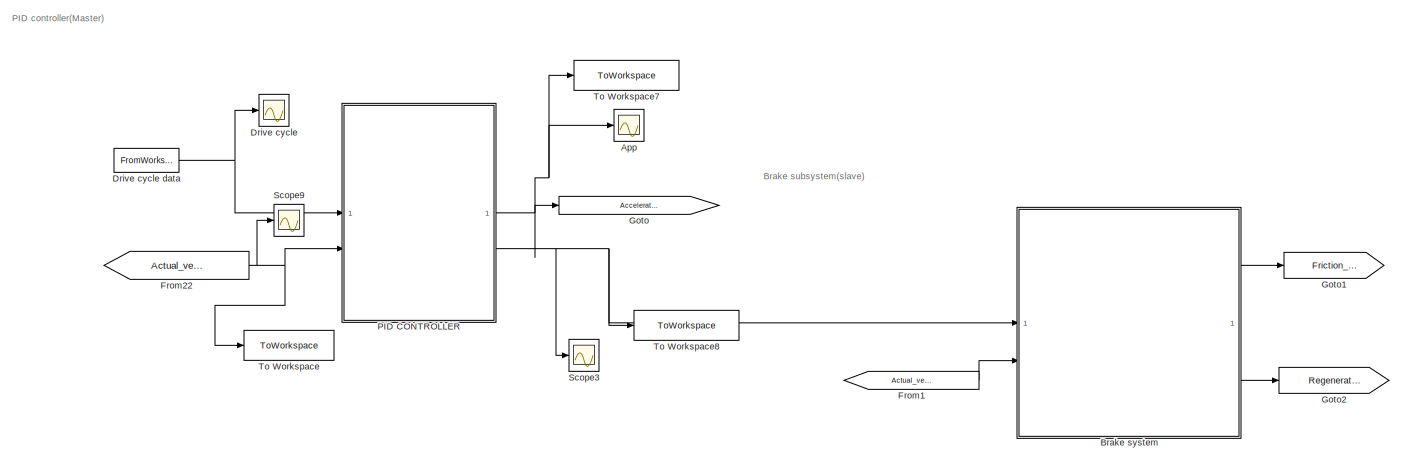
[diagram: root canvas - part 1/5, top center region]
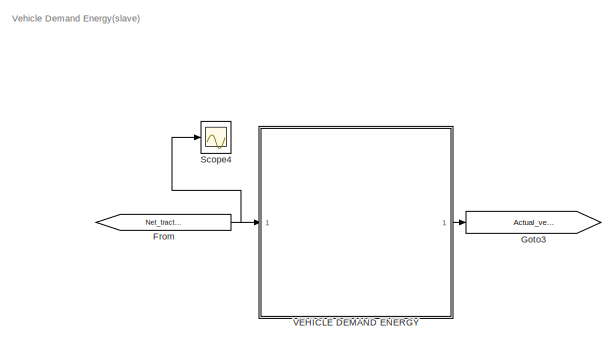
[diagram: root canvas - part 2/5, top left region]
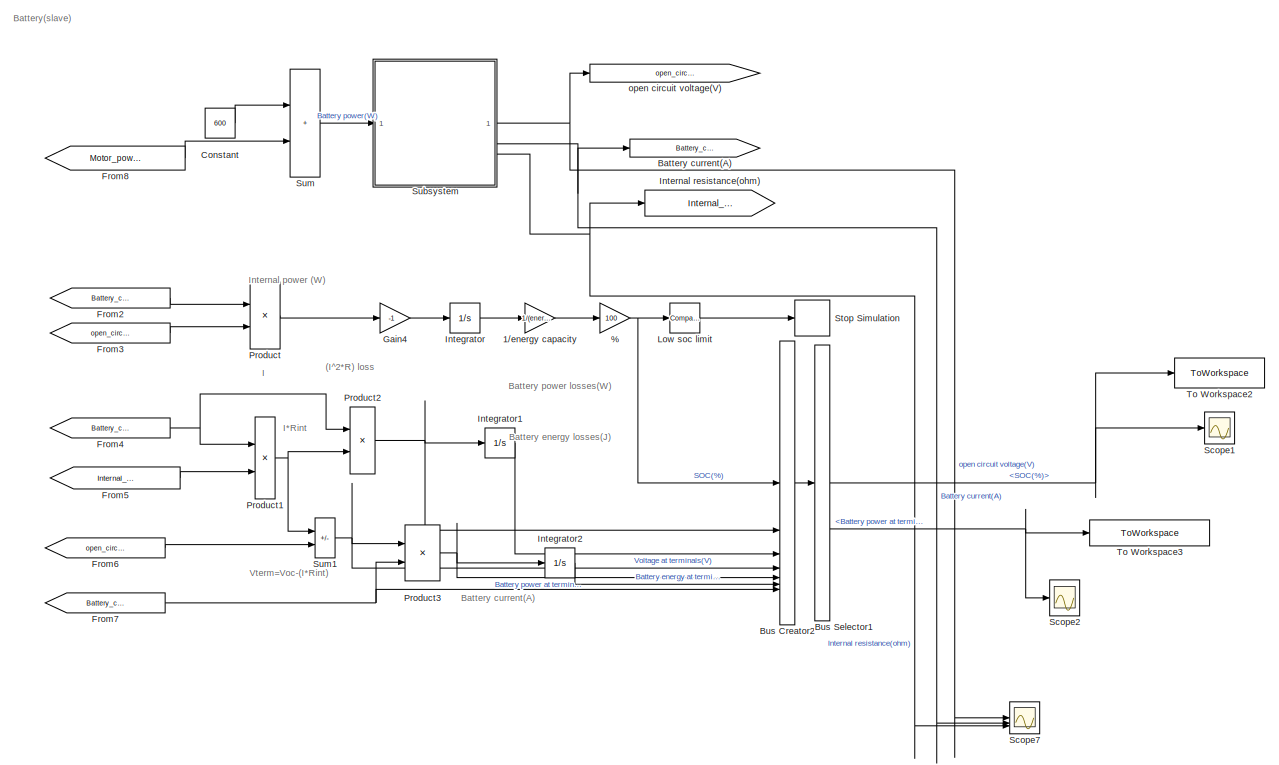
[diagram: root canvas - part 3/5, middle right region]
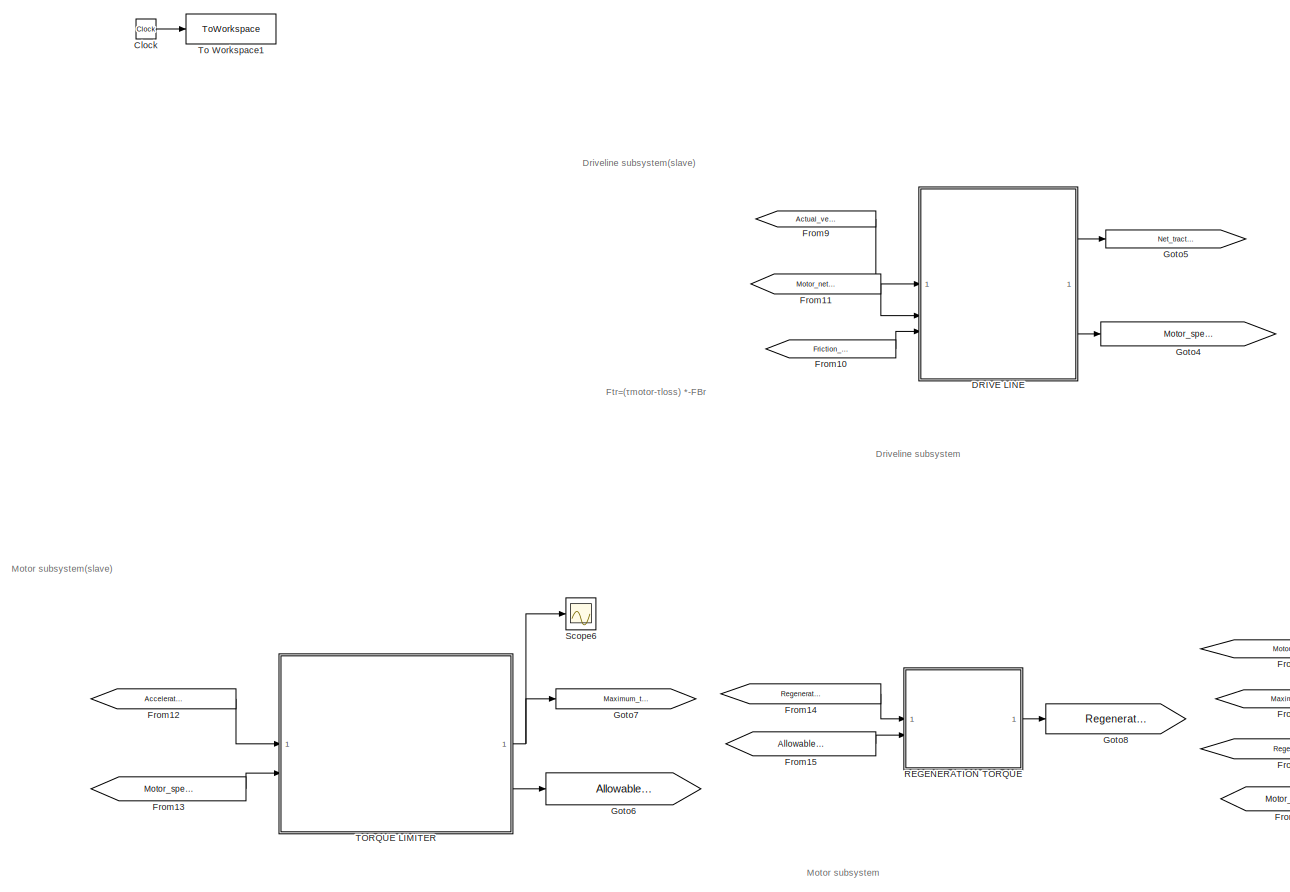
[diagram: root canvas - part 4/5, bottom left region]
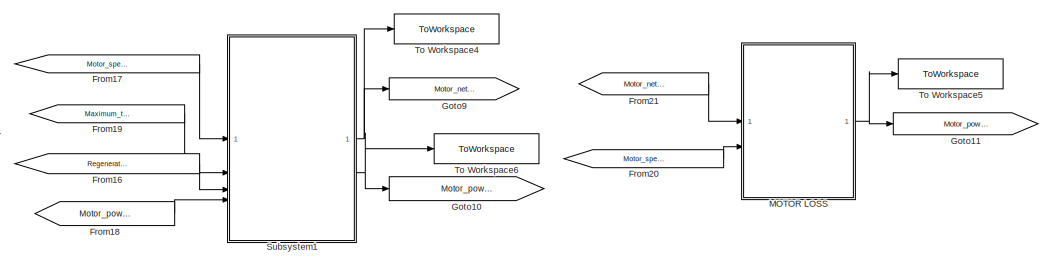
[diagram: root canvas - part 5/5, bottom center region]
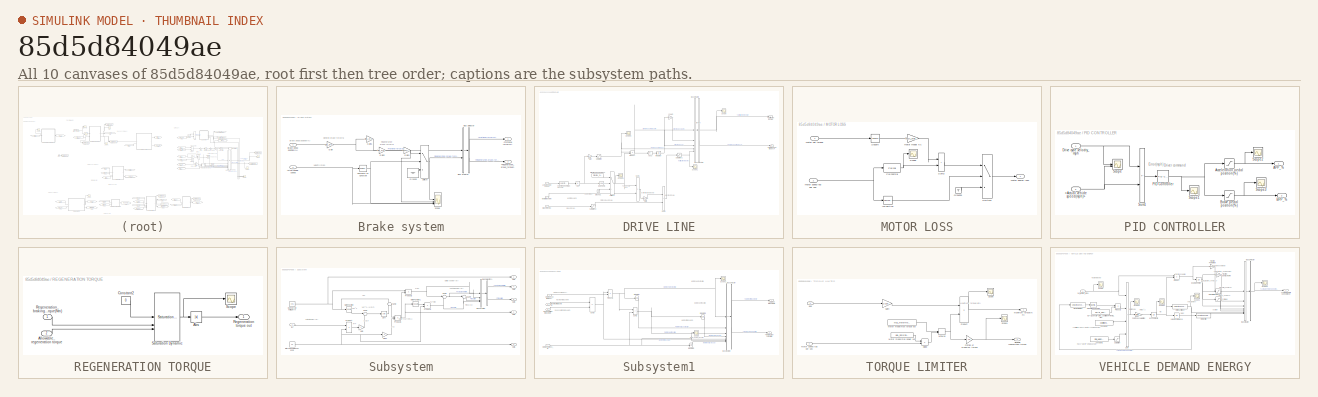
[diagram: thumbnail index - all 10 canvases of the model, root first then tree order]
MODEL slx_85d5d84049ae
KIND model
CONFIG AbsTol = auto
CONFIG EnableMultiTasking = off
CONFIG FixedStep = auto
CONFIG MaxStep = auto
CONFIG MinStep = auto
CONFIG RelTol = 1e-3
CONFIG SampleTimeConstraint = Unconstrained
CONFIG SolverName = ode4
CONFIG StartTime = 0.0
CONFIG StopTime = 601
BLOCK [Gain] %
  Gain = 100
BLOCK [Gain] 1//energy capacity
  Gain = 1/(energy_capacity*3600*1000)
BLOCK [Scope] App
  ActiveDisplayYMaximum = 8.29642
  ActiveDisplayYMinimum = -0.92182
  Floating = off
  GraphicalSettings = {"GraphicalSettings":{"LegacySettings":true,"Style":{"Style":{"AxesColor":"[0 0 0]","ChannelNames":[""],"ColorOrder":"[1 0.909803921568627 0.392156862745098;0.149019607843137 0.549019607843137 0.866666666666667;0.96078431372549 0.466666666666667 0.16078431372549;0.286274509803922 0.858823529411765 0.250980392156863;0.752941176470588 0.36078431372549 0.984313725490196;0.423529411764706 0.9568627450...<+457ch>  <repeated x5 — deduplicated; at blocks: App, Scope4, Scope>
  MultipleDisplayCache = [{"MaxYLimMag":8.29642,"MaxYLimReal":8.29642,"MinYLimMag":0,"MinYLimReal":-0.92182,"PlotAsMagnitudePhase":false,"ShowGrid":true,"ShowLegend":false,"Title":"%<SignalLabel>","YLabel":""}]
  NumInputPorts = 1
  WasSavedAsWebScope = on
BLOCK [Goto] Battery current(A)
  GotoTag = Battery_current_A
BLOCK [SubSystem] Brake system
BLOCK [Outport] Brake system/<Frictional force(N)>
BLOCK [Outport] Brake system/<Regenerative_brake_torque>
  Port = 2
BLOCK [Inport] Brake system/Actual vehicle speed
  Port = 2
BLOCK [Inport] Brake system/Brake pedal position(%)
BLOCK [BusCreator] Brake system/Bus Creator
  DisplayOption = bar
  InheritFromInputs = on
  Inputs = 2
BLOCK [BusSelector] Brake system/Bus Selector
  OutputSignals = Frictional force(N),Regenerative_brake_torque(Nm)
BLOCK [Reference] Brake system/Compare To Constant  REF=simulink/Logic and Bit
Operations/Compare
To Constant
  SourceBlock = simulink/Logic and Bit\nOperations/Compare\nTo Constant
  SourceType = Compare To Constant
BLOCK [Gain] Brake system/Gain
  Gain = MDL_Brakingsystem_maximum_brakeforce/100
BLOCK [Gain] Brake system/Gain1
  Gain = MDL_brakesystem_friction
BLOCK [Gain] Brake system/Gain2
  Gain = MDL_brakesystem_regenerative_friction
BLOCK [Gain] Brake system/Gain3
  Gain = wheel_radius_cal/Gear_Ratio_g
BLOCK [Ground] Brake system/Ground
BLOCK [Scope] Brake system/Scope
  ActiveDisplayYMaximum = 1
  ActiveDisplayYMinimum = -1
  DataLoggingVariableName = ScopeData3
  Floating = off
  GraphicalSettings = {"GraphicalSettings":{"LegacySettings":true,"Style":{"Style":{"AxesColor":"[0 0 0]","ChannelNames":["","","",""],"ColorOrder":"[1 0.909803921568627 0.392156862745098;0.149019607843137 0.549019607843137 0.866666666666667;0.96078431372549 0.466666666666667 0.16078431372549;0.286274509803922 0.858823529411765 0.250980392156863;0.752941176470588 0.36078431372549 0.984313725490196;0.423529411764706 0.9...<+525ch>
  LayoutDimensionsString = [4 1]
  MultipleDisplayCache = [{"MaxYLimMag":1,"MaxYLimReal":1,"MinYLimMag":0,"MinYLimReal":-1,"PlotAsMagnitudePhase":false,"ShowGrid":true,"ShowLegend":false,"Title":"%<SignalLabel>","YLabel":""},{"MaxYLimMag":4.84188,"MaxYLimReal":1,"MinYLimMag":0,"MinYLimReal":-1,"PlotAsMagnitudePhase":false,"ShowGrid":true,"ShowLegend":false,"Title":"%<SignalLabel>","YLabel":""},{"MaxYLimMag":4.84188,"MaxYLimReal":1,"MinYLimMag":0,"MinYLim...<+296ch>
  NumInputPorts = 4
  WasSavedAsWebScope = on
  WindowPosition = [1 41 1366 651]
BLOCK [Switch] Brake system/Switch
  Criteria = u2 > Threshold
  InputSameDT = off
  SaturateOnIntegerOverflow = off
BLOCK [BusCreator] Bus Creator2
  DisplayOption = bar
  InheritFromInputs = on
  Inputs = 7
BLOCK [BusSelector] Bus Selector1
  OutputSignals = SOC(%),Battery power at terminals(W)
BLOCK [Clock] Clock
BLOCK [Constant] Constant
  Value = 600
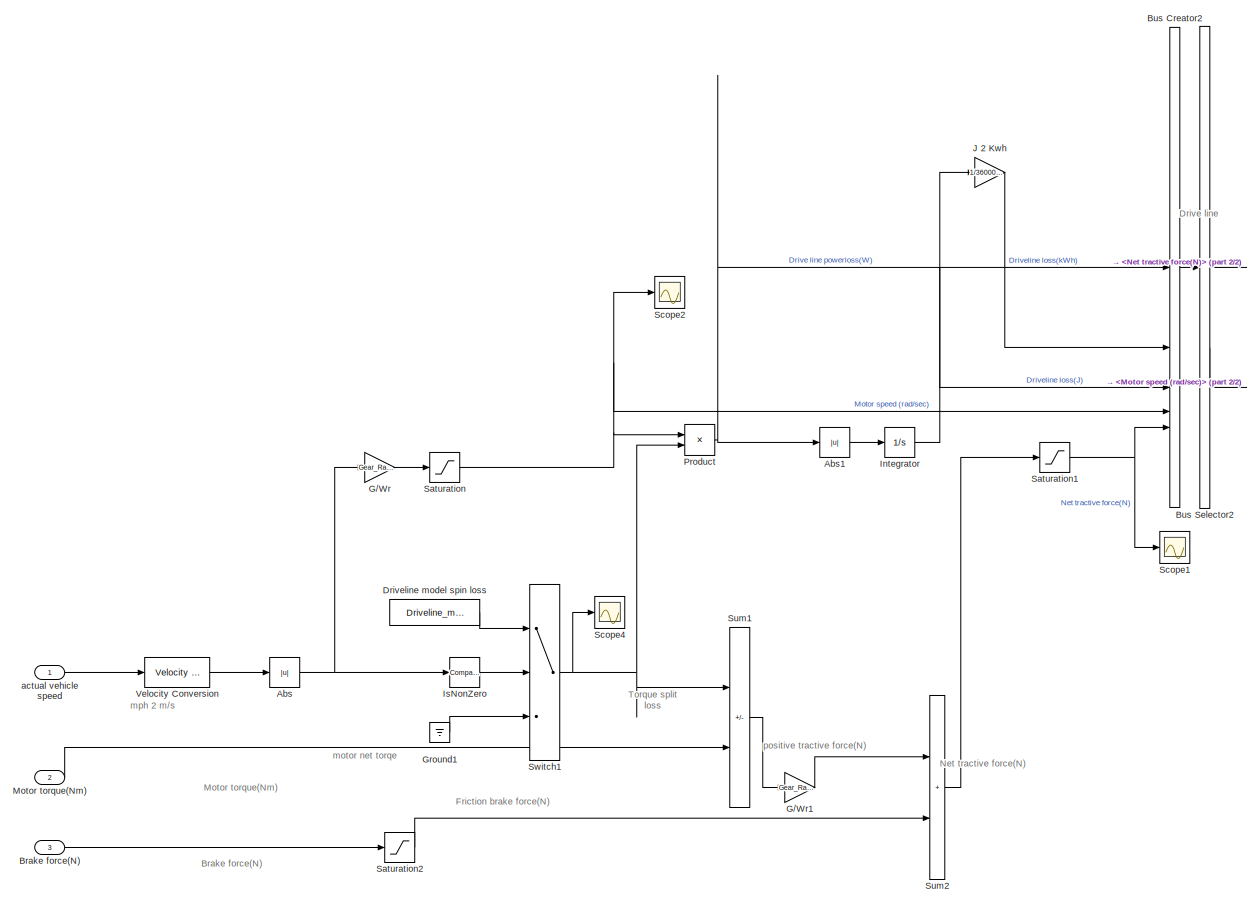
[diagram: DRIVE LINE - part 1/2, center side, full height]
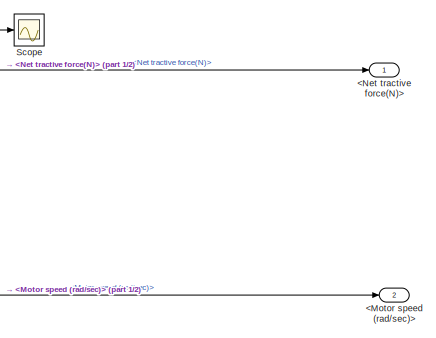
[diagram: DRIVE LINE - part 2/2, top right region]
BLOCK [SubSystem] DRIVE LINE
BLOCK [Outport] DRIVE LINE/<Motor speed (rad//sec)>
  Port = 2
BLOCK [Outport] DRIVE LINE/<Net tractive force(N)>
BLOCK [Abs] DRIVE LINE/Abs
  SaturateOnIntegerOverflow = off
BLOCK [Abs] DRIVE LINE/Abs1
  SaturateOnIntegerOverflow = off
BLOCK [Inport] DRIVE LINE/Brake force(N)
  Port = 3
BLOCK [BusCreator] DRIVE LINE/Bus Creator2
  DisplayOption = bar
  InheritFromInputs = on
  Inputs = 5
BLOCK [BusSelector] DRIVE LINE/Bus Selector2
  OutputSignals = Net tractive force(N),Motor speed (rad/sec)
BLOCK [Constant] DRIVE LINE/Driveline model spin loss
  OutDataTypeStr = double
  Value = Driveline_model_spinloss
BLOCK [Gain] DRIVE LINE/G//Wr
  Gain = Gear_Ratio_g/wheel_radius_cal
BLOCK [Gain] DRIVE LINE/G//Wr1
  Gain = Gear_Ratio_g/wheel_radius_cal
BLOCK [Ground] DRIVE LINE/Ground1
BLOCK [Integrator] DRIVE LINE/Integrator
BLOCK [Reference] DRIVE LINE/IsNonZero  REF=simulink/Logic and Bit
Operations/Compare
To Zero
  SourceBlock = simulink/Logic and Bit\nOperations/Compare\nTo Zero
  SourceType = Compare To Zero
BLOCK [Gain] DRIVE LINE/J 2 Kwh
  Gain = 1/3600000
BLOCK [Inport] DRIVE LINE/Motor torque(Nm)
  Port = 2
BLOCK [Product] DRIVE LINE/Product
BLOCK [Saturate] DRIVE LINE/Saturation
  LowerLimit = .00001
  UpperLimit = inf
BLOCK [Saturate] DRIVE LINE/Saturation1
  LowerLimit = -10000
  OutDataTypeStr = double
  UpperLimit = 5000
BLOCK [Saturate] DRIVE LINE/Saturation2
  LowerLimit = -10000
  UpperLimit = 0
BLOCK [Scope] DRIVE LINE/Scope
  ActiveDisplayYMaximum = 1
  ActiveDisplayYMinimum = -1
  DataLoggingVariableName = ScopeData1
  Floating = off
  GraphicalSettings = {"Style":{"BackgroundColor":[0.12941176470588237,0.12941176470588237,0.12941176470588237],"AxesColor":[0.07058823529411765,0.07058823529411765,0.07058823529411765],"LabelsColor":[0.8509803921568627,0.8509803921568627,0.8509803921568627],"PreserveColors":false,"Visible":[true],"LineStyle":["-"],"LineWidth":[1.5],"BarWidth":[0.9],"LineColor":["auto"],"LineFaceAlpha":[1],"LineEdgeAlpha":[1],"Marker":...<+1923ch>
  MultipleDisplayCache = [{"MaxYLimMag":1,"MaxYLimReal":1,"MinYLimMag":0,"MinYLimReal":-1,"PlotAsMagnitudePhase":false,"ShowGrid":true,"ShowLegend":false,"Title":"%<SignalLabel>","YLabel":""}]
  NumInputPorts = 1
  ScopeFrameLocation = window
  WasSavedAsWebScope = on
  WindowPosition = [1.000000,41.000000,1366.000000,651.000000,]
BLOCK [Scope] DRIVE LINE/Scope1
  ActiveDisplayYMaximum = 10023.80324
  ActiveDisplayYMinimum = -10214.22916
  DataLoggingVariableName = ScopeData3
  Floating = off
  GraphicalSettings = {"Style":{"BackgroundColor":[0.12941176470588237,0.12941176470588237,0.12941176470588237],"AxesColor":[0.07058823529411765,0.07058823529411765,0.07058823529411765],"LabelsColor":[0.8509803921568627,0.8509803921568627,0.8509803921568627],"PreserveColors":false,"Visible":[true],"LineStyle":["-"],"LineWidth":[1.5],"BarWidth":[0.9],"LineColor":["auto"],"LineFaceAlpha":[1],"LineEdgeAlpha":[1],"Marker":...<+1966ch>
  MultipleDisplayCache = [{"MaxYLimMag":10214.22916,"MaxYLimReal":10023.80324,"MinYLimMag":0,"MinYLimReal":-10214.22916,"PlotAsMagnitudePhase":false,"ShowGrid":true,"ShowLegend":false,"Title":"%<SignalLabel>","YLabel":""}]
  NumInputPorts = 1
  ScopeFrameLocation = window
  WasSavedAsWebScope = on
  WindowPosition = [1.000000,41.000000,1366.000000,651.000000,]
BLOCK [Scope] DRIVE LINE/Scope2
  ActiveDisplayYMaximum = 69.82309
  ActiveDisplayYMinimum = -7.75811
  DataLoggingVariableName = ScopeData4
  Floating = off
  GraphicalSettings = {"GraphicalSettings":{"LegacySettings":true,"Style":{"Style":{"AxesColor":"[0 0 0]","ChannelNames":[""],"ColorOrder":"[1 0.909803921568627 0.392156862745098;0.149019607843137 0.549019607843137 0.866666666666667;0.96078431372549 0.466666666666667 0.16078431372549;0.286274509803922 0.858823529411765 0.250980392156863;0.752941176470588 0.36078431372549 0.984313725490196;0.423529411764706 0.9568627450...<+432ch>  <repeated x5 — deduplicated; at blocks: Scope2, Scope3, Scope4>
  MultipleDisplayCache = [{"MaxYLimMag":69.82309,"MaxYLimReal":69.82309,"MinYLimMag":0,"MinYLimReal":-7.75811,"PlotAsMagnitudePhase":false,"ShowGrid":true,"ShowLegend":false,"Title":"%<SignalLabel>","YLabel":""}]
  NumInputPorts = 1
  WasSavedAsWebScope = on
BLOCK [Scope] DRIVE LINE/Scope4
  ActiveDisplayYMaximum = 6.75
  ActiveDisplayYMinimum = -0.75
  DataLoggingVariableName = ScopeData11
  Floating = off
  MultipleDisplayCache = [{"MaxYLimMag":6.75,"MaxYLimReal":6.75,"MinYLimMag":0,"MinYLimReal":-0.75,"PlotAsMagnitudePhase":false,"ShowGrid":true,"ShowLegend":false,"Title":"%<SignalLabel>","YLabel":""}]
  NumInputPorts = 1
  WasSavedAsWebScope = on
  WindowPosition = [1 41 1366 651]
BLOCK [Sum] DRIVE LINE/Sum1
  IconShape = rectangular
  Inputs = |-+
BLOCK [Sum] DRIVE LINE/Sum2
  IconShape = rectangular
  Inputs = |++
BLOCK [Switch] DRIVE LINE/Switch1
  Criteria = u2 > Threshold
  InputSameDT = off
  OutDataTypeStr = double
  SaturateOnIntegerOverflow = off
BLOCK [Reference] DRIVE LINE/Velocity Conversion  REF=aerolibconvert2/Velocity Conversion
  SourceBlock = aerolibconvert2/Velocity Conversion
  SourceType = Velocity Conversion
BLOCK [Inport] DRIVE LINE/actual vehicle speed
BLOCK [Scope] Drive cycle
  ActiveDisplayYMaximum = 90.3375
  ActiveDisplayYMinimum = -10.0375
  DataLoggingVariableName = ScopeData12
  Floating = off
  GraphicalSettings = {"GraphicalSettings":{"LegacySettings":true,"Style":{"Style":{"AxesColor":"[0 0 0]","ChannelNames":[""],"ColorOrder":"[1 0.909803921568627 0.392156862745098;0.149019607843137 0.549019607843137 0.866666666666667;0.96078431372549 0.466666666666667 0.16078431372549;0.286274509803922 0.858823529411765 0.250980392156863;0.752941176470588 0.36078431372549 0.984313725490196;0.423529411764706 0.9568627450...<+14248ch>
  MultipleDisplayCache = [{"MaxYLimMag":90.3375,"MaxYLimReal":90.3375,"MinYLimMag":0,"MinYLimReal":-10.0375,"PlotAsMagnitudePhase":false,"ShowGrid":true,"ShowLegend":false,"Title":"%<SignalLabel>","YLabel":""}]
  NumInputPorts = 1
  WasSavedAsWebScope = on
  WindowPosition = [1 41 1366 651]
BLOCK [FromWorkspace] Drive cycle data
  SampleTime = 0.1
  VariableName = velocity
BLOCK [From] From
  GotoTag = Net_tractive_force_N
  TagVisibility = global
BLOCK [From] From1
  GotoTag = Actual_vehicle_speed
  TagVisibility = global
BLOCK [From] From10
  GotoTag = Friction_force_N
  TagVisibility = global
BLOCK [From] From11
  GotoTag = Motor_net_torque
  TagVisibility = global
BLOCK [From] From12
  GotoTag = Acceleration_pedal_position
  TagVisibility = global
BLOCK [From] From13
  GotoTag = Motor_speed_rad_per_second
  TagVisibility = global
BLOCK [From] From14
  GotoTag = Regeneration_torque
  TagVisibility = global
BLOCK [From] From15
  GotoTag = Allowable_regeneration_torque
  TagVisibility = global
BLOCK [From] From16
  GotoTag = Regeneration_torque_out
  TagVisibility = global
BLOCK [From] From17
  GotoTag = Motor_speed_rad_per_second
  TagVisibility = global
BLOCK [From] From18
  GotoTag = Motor_power_loss
  TagVisibility = global
BLOCK [From] From19
  GotoTag = Maximum_torque_Nm
  TagVisibility = global
BLOCK [From] From2
  GotoTag = Battery_current_A
BLOCK [From] From20
  GotoTag = Motor_speed_rad_per_second
  TagVisibility = global
BLOCK [From] From21
  GotoTag = Motor_net_torque
  TagVisibility = global
BLOCK [From] From22
  GotoTag = Actual_vehicle_speed
  TagVisibility = global
BLOCK [From] From3
  GotoTag = open_circuit_voltage_V
BLOCK [From] From4
  GotoTag = Battery_current_A
BLOCK [From] From5
  GotoTag = Internal_resistance_ohm
BLOCK [From] From6
  GotoTag = open_circuit_voltage_V
BLOCK [From] From7
  GotoTag = Battery_current_A
BLOCK [From] From8
  GotoTag = Motor_power_output_W
  TagVisibility = global
BLOCK [From] From9
  GotoTag = Actual_vehicle_speed
  TagVisibility = global
BLOCK [Gain] Gain4
  Gain = -1
BLOCK [Goto] Goto
  GotoTag = Acceleration_pedal_position
  TagVisibility = global
BLOCK [Goto] Goto1
  GotoTag = Friction_force_N
  TagVisibility = global
BLOCK [Goto] Goto10
  GotoTag = Motor_power_output_W
  TagVisibility = global
BLOCK [Goto] Goto11
  GotoTag = Motor_power_loss
  TagVisibility = global
BLOCK [Goto] Goto2
  GotoTag = Regeneration_torque
  TagVisibility = global
BLOCK [Goto] Goto3
  GotoTag = Actual_vehicle_speed
  TagVisibility = global
BLOCK [Goto] Goto4
  GotoTag = Motor_speed_rad_per_second
  TagVisibility = global
BLOCK [Goto] Goto5
  GotoTag = Net_tractive_force_N
  TagVisibility = global
BLOCK [Goto] Goto6
  GotoTag = Allowable_regeneration_torque
  TagVisibility = global
BLOCK [Goto] Goto7
  GotoTag = Maximum_torque_Nm
  TagVisibility = global
BLOCK [Goto] Goto8
  GotoTag = Regeneration_torque_out
  TagVisibility = global
BLOCK [Goto] Goto9
  GotoTag = Motor_net_torque
  TagVisibility = global
BLOCK [Integrator] Integrator
  InitialCondition = energy_capacity*3600*1000*initial_soc
BLOCK [Integrator] Integrator1
BLOCK [Integrator] Integrator2
BLOCK [Goto] Internal resistance(ohm)
  GotoTag = Internal_resistance_ohm
BLOCK [Reference] Low soc limit  REF=simulink/Logic and Bit
Operations/Compare
To Constant
  SourceBlock = simulink/Logic and Bit\nOperations/Compare\nTo Constant
  SourceType = Compare To Constant
BLOCK [SubSystem] MOTOR LOSS
BLOCK [Ground] MOTOR LOSS/Ground1
BLOCK [Reference] MOTOR LOSS/IsPositive  REF=simulink/Logic and Bit
Operations/Compare
To Zero
  SourceBlock = simulink/Logic and Bit\nOperations/Compare\nTo Zero
  SourceType = Compare To Zero
BLOCK [Polyval] MOTOR LOSS/Polynomial
  Coefs = [MotorModel_kw,0,MotorModel_ki,MotorModel_C]
BLOCK [Scope] MOTOR LOSS/Scope
  ActiveDisplayYMaximum = 1027.81559
  ActiveDisplayYMinimum = 583.90938
  DataLoggingVariableName = ScopeData5
  Floating = off
  MultipleDisplayCache = [{"MaxYLimMag":1027.81559,"MaxYLimReal":1027.81559,"MinYLimMag":583.90938,"MinYLimReal":583.90938,"PlotAsMagnitudePhase":false,"ShowGrid":true,"ShowLegend":false,"Title":"%<SignalLabel>","YLabel":""}]
  NumInputPorts = 1
  WasSavedAsWebScope = on
BLOCK [Math] MOTOR LOSS/Square
  Operator = square
BLOCK [Sum] MOTOR LOSS/Sum3
  IconShape = rectangular
  Inputs = |++
BLOCK [Switch] MOTOR LOSS/Switch1
  Criteria = u2 > Threshold
  InputSameDT = off
  OutDataTypeStr = double
  SaturateOnIntegerOverflow = off
BLOCK [Gain] MOTOR LOSS/motor model Kc
  Gain = MDL_motormodel_Kc
BLOCK [Inport] MOTOR LOSS/motor net torque
BLOCK [Outport] MOTOR LOSS/motor power loss
BLOCK [Inport] MOTOR LOSS/motor speed rad per sec
  Port = 2
BLOCK [SubSystem] PID CONTROLLER
BLOCK [Inport] PID CONTROLLER/<Actual vehicle speed(mph)>
  Port = 2
BLOCK [Outport] PID CONTROLLER/APP_%
BLOCK [Saturate] PID CONTROLLER/Acceleration pedal position(%)
  LinearizeAsGain = off
  LowerLimit = 0
  OutDataTypeStr = double
  UpperLimit = 100
  ZeroCross = off
BLOCK [Outport] PID CONTROLLER/BPP_%
  Port = 2
BLOCK [Saturate] PID CONTROLLER/Brake pedal position(%)
  LinearizeAsGain = off
  LowerLimit = -100
  OutDataTypeStr = double
  UpperLimit = 0
  ZeroCross = off
BLOCK [Inport] PID CONTROLLER/Drive cycle velocity_mph
BLOCK [Reference] PID CONTROLLER/PID Controller  REF=slpidlib/PID Controller
  SourceBlock = slpidlib/PID Controller
  SourceType = PID 1dof
BLOCK [Scope] PID CONTROLLER/Scope
  ActiveDisplayYMaximum = 1
  ActiveDisplayYMinimum = -1
  DataLoggingVariableName = ScopeData1
  Floating = off
  GraphicalSettings = {"Style":{"BackgroundColor":[0.12941176470588237,0.12941176470588237,0.12941176470588237],"AxesColor":[0.07058823529411765,0.07058823529411765,0.07058823529411765],"LabelsColor":[0.8509803921568627,0.8509803921568627,0.8509803921568627],"PreserveColors":false,"Visible":[true,true],"LineStyle":["-","-"],"LineWidth":[1.5,1.5],"BarWidth":[0.9,0.9],"LineColor":["auto","auto"],"LineFaceAlpha":[1,1],"Li...<+2185ch>
  MultipleDisplayCache = [{"MaxYLimMag":1,"MaxYLimReal":1,"MinYLimMag":0,"MinYLimReal":-1,"PlotAsMagnitudePhase":false,"ShowGrid":true,"ShowLegend":true,"Title":"%<SignalLabel>","YLabel":""}]
  NumInputPorts = 2
  ScopeFrameLocation = window
  ShowLegend = on
  WasSavedAsWebScope = on
  WindowPosition = [1.000000,41.000000,1366.000000,705.000000,]
BLOCK [Scope] PID CONTROLLER/Scope1
  ActiveDisplayYMaximum = 1
  ActiveDisplayYMinimum = -1
  DataLoggingVariableName = ScopeData1
  Floating = off
  GraphicalSettings = {"Style":{"BackgroundColor":[0.12941176470588237,0.12941176470588237,0.12941176470588237],"AxesColor":[0.07058823529411765,0.07058823529411765,0.07058823529411765],"LabelsColor":[0.8509803921568627,0.8509803921568627,0.8509803921568627],"PreserveColors":false,"Visible":[true],"LineStyle":["-"],"LineWidth":[1.5],"BarWidth":[0.9],"LineColor":["auto"],"LineFaceAlpha":[1],"LineEdgeAlpha":[1],"Marker":...<+1946ch>
  MultipleDisplayCache = [{"MaxYLimMag":1,"MaxYLimReal":1,"MinYLimMag":0,"MinYLimReal":-1,"PlotAsMagnitudePhase":false,"ShowGrid":true,"ShowLegend":false,"Title":"%<SignalLabel>","YLabel":""}]
  NumInputPorts = 1
  ScopeFrameLocation = window
  WasSavedAsWebScope = on
  WindowPosition = [1.000000,41.000000,1366.000000,651.000000,]
BLOCK [Scope] PID CONTROLLER/Scope2
  ActiveDisplayYMaximum = 1
  ActiveDisplayYMinimum = -1
  DataLoggingVariableName = ScopeData10
  Floating = off
  GraphicalSettings = {"Style":{"BackgroundColor":[0.12941176470588237,0.12941176470588237,0.12941176470588237],"AxesColor":[0.07058823529411765,0.07058823529411765,0.07058823529411765],"LabelsColor":[0.8509803921568627,0.8509803921568627,0.8509803921568627],"PreserveColors":false,"Visible":[true],"LineStyle":["-"],"LineWidth":[1.5],"BarWidth":[0.9],"LineColor":["auto"],"LineFaceAlpha":[1],"LineEdgeAlpha":[1],"Marker":...<+1936ch>
  MultipleDisplayCache = [{"MaxYLimMag":1,"MaxYLimReal":1,"MinYLimMag":0,"MinYLimReal":-1,"PlotAsMagnitudePhase":false,"ShowGrid":true,"ShowLegend":false,"Title":"%<SignalLabel>","YLabel":""}]
  NumInputPorts = 1
  ScopeFrameLocation = window
  WasSavedAsWebScope = on
  WindowPosition = [1.000000,41.000000,1366.000000,705.000000,]
BLOCK [Scope] PID CONTROLLER/Scope3
  ActiveDisplayYMaximum = 1
  ActiveDisplayYMinimum = -1
  DataLoggingVariableName = ScopeData1
  Floating = off
  GraphicalSettings = {"Style":{"BackgroundColor":[0.12941176470588237,0.12941176470588237,0.12941176470588237],"AxesColor":[0.07058823529411765,0.07058823529411765,0.07058823529411765],"LabelsColor":[0.8509803921568627,0.8509803921568627,0.8509803921568627],"PreserveColors":false,"Visible":[true],"LineStyle":["-"],"LineWidth":[1.5],"BarWidth":[0.9],"LineColor":["auto"],"LineFaceAlpha":[1],"LineEdgeAlpha":[1],"Marker":...<+1947ch>
  MultipleDisplayCache = [{"MaxYLimMag":1,"MaxYLimReal":1,"MinYLimMag":0,"MinYLimReal":-1,"PlotAsMagnitudePhase":false,"ShowGrid":true,"ShowLegend":false,"Title":"%<SignalLabel>","YLabel":""}]
  NumInputPorts = 1
  ScopeFrameLocation = window
  WasSavedAsWebScope = on
  WindowPosition = [1.000000,41.000000,1366.000000,705.000000,]
BLOCK [Sum] PID CONTROLLER/Sum1
  IconShape = rectangular
  Inputs = +-
BLOCK [Product] Product
BLOCK [Product] Product1
BLOCK [Product] Product2
BLOCK [Product] Product3
BLOCK [SubSystem] REGENERATION TORQUE
BLOCK [Abs] REGENERATION TORQUE/Abs
  SaturateOnIntegerOverflow = off
BLOCK [Inport] REGENERATION TORQUE/Allowable_regeneration torque
  Port = 2
BLOCK [Constant] REGENERATION TORQUE/Constant2
  Value = 0
BLOCK [Outport] REGENERATION TORQUE/Regeneration torque out
BLOCK [Inport] REGENERATION TORQUE/Regeneration_braking_torque(Nm)
BLOCK [Reference] REGENERATION TORQUE/Saturation Dynamic  REF=simulink/Discontinuities/Saturation
Dynamic
  SourceBlock = simulink/Discontinuities/Saturation\nDynamic
  SourceType = Saturation Dynamic
BLOCK [Scope] REGENERATION TORQUE/Scope
  ActiveDisplayYMaximum = 21.3125
  ActiveDisplayYMinimum = -191.8125
  DataLoggingVariableName = ScopeData2
  Floating = off
  GraphicalSettings = {"GraphicalSettings":{"LegacySettings":true,"Style":{"Style":{"AxesColor":"[0 0 0]","ChannelNames":[""],"ColorOrder":"[1 0.909803921568627 0.392156862745098;0.149019607843137 0.549019607843137 0.866666666666667;0.96078431372549 0.466666666666667 0.16078431372549;0.286274509803922 0.858823529411765 0.250980392156863;0.752941176470588 0.36078431372549 0.984313725490196;0.423529411764706 0.9568627450...<+471ch>
  MultipleDisplayCache = [{"MaxYLimMag":191.8125,"MaxYLimReal":21.3125,"MinYLimMag":0,"MinYLimReal":-191.8125,"PlotAsMagnitudePhase":false,"ShowGrid":true,"ShowLegend":false,"Title":"%<SignalLabel>","YLabel":""}]
  NumInputPorts = 1
  WasSavedAsWebScope = on
  WindowPosition = [1 41 1366 651]
BLOCK [Scope] Scope1
  ActiveDisplayYMaximum = 1
  ActiveDisplayYMinimum = -1
  DataLogging = on
  DataLoggingVariableName = ScopeData13
  Floating = off
  GraphicalSettings = {"Style":{"BackgroundColor":[0.12941176470588237,0.12941176470588237,0.12941176470588237],"AxesColor":[0.07058823529411765,0.07058823529411765,0.07058823529411765],"LabelsColor":[0.8509803921568627,0.8509803921568627,0.8509803921568627],"PreserveColors":false,"Visible":[true],"LineStyle":["-"],"LineWidth":[1.5],"BarWidth":[0.9],"LineColor":["auto"],"LineFaceAlpha":[1],"LineEdgeAlpha":[1],"Marker":...<+1946ch>
  MultipleDisplayCache = [{"MaxYLimMag":1,"MaxYLimReal":1,"MinYLimMag":0,"MinYLimReal":-1,"PlotAsMagnitudePhase":false,"ShowGrid":true,"ShowLegend":false,"Title":"%<SignalLabel>","YLabel":""}]
  NumInputPorts = 1
  ScopeFrameLocation = window
  WasSavedAsWebScope = on
  WindowPosition = [1.000000,41.000000,1366.000000,651.000000,]
BLOCK [Scope] Scope2
  ActiveDisplayYMaximum = 119350.00000000003
  ActiveDisplayYMinimum = -68149.999999999942
  DataLogging = on
  DataLoggingVariableName = ScopeData14
  Floating = off
  GraphicalSettings = {"Style":{"BackgroundColor":[0.12941176470588237,0.12941176470588237,0.12941176470588237],"AxesColor":[0.07058823529411765,0.07058823529411765,0.07058823529411765],"LabelsColor":[0.8509803921568627,0.8509803921568627,0.8509803921568627],"PreserveColors":false,"Visible":[true],"LineStyle":["-"],"LineWidth":[1.5],"BarWidth":[0.9],"LineColor":["auto"],"LineFaceAlpha":[1],"LineEdgeAlpha":[1],"Marker":...<+2045ch>
  MultipleDisplayCache = [{"MaxYLimMag":119350.00000000003,"MaxYLimReal":119350.00000000003,"MinYLimMag":0,"MinYLimReal":-68149.999999999942,"PlotAsMagnitudePhase":false,"ShowGrid":true,"ShowLegend":false,"Title":"%<SignalLabel>","YLabel":""}]
  NumInputPorts = 1
  ScopeFrameLocation = window
  WasSavedAsWebScope = on
  WindowPosition = [1.000000,41.000000,1366.000000,651.000000,]
BLOCK [Scope] Scope3
  ActiveDisplayYMaximum = 1
  ActiveDisplayYMinimum = -1
  DataLoggingVariableName = ScopeData6
  Floating = off
  MultipleDisplayCache = [{"MaxYLimMag":1,"MaxYLimReal":1,"MinYLimMag":0,"MinYLimReal":-1,"PlotAsMagnitudePhase":false,"ShowGrid":true,"ShowLegend":false,"Title":"%<SignalLabel>","YLabel":""}]
  NumInputPorts = 1
  WasSavedAsWebScope = on
BLOCK [Scope] Scope4
  ActiveDisplayYMaximum = 6875
  ActiveDisplayYMinimum = -11875
  DataLoggingVariableName = ScopeData15
  Floating = off
  MultipleDisplayCache = [{"MaxYLimMag":11875,"MaxYLimReal":6875,"MinYLimMag":0,"MinYLimReal":-11875,"PlotAsMagnitudePhase":false,"ShowGrid":true,"ShowLegend":false,"Title":"%<SignalLabel>","YLabel":""}]
  NumInputPorts = 1
  WasSavedAsWebScope = on
BLOCK [Scope] Scope6
  ActiveDisplayYMaximum = 1
  ActiveDisplayYMinimum = -1
  DataLoggingVariableName = ScopeData16
  Floating = off
  GraphicalSettings = {"Style":{"BackgroundColor":[0.12941176470588237,0.12941176470588237,0.12941176470588237],"AxesColor":[0.07058823529411765,0.07058823529411765,0.07058823529411765],"LabelsColor":[0.8509803921568627,0.8509803921568627,0.8509803921568627],"PreserveColors":false,"Visible":[true],"LineStyle":["-"],"LineWidth":[1.5],"BarWidth":[0.9],"LineColor":["auto"],"LineFaceAlpha":[1],"LineEdgeAlpha":[1],"Marker":...<+1966ch>
  MultipleDisplayCache = [{"MaxYLimMag":1,"MaxYLimReal":1,"MinYLimMag":0,"MinYLimReal":-1,"PlotAsMagnitudePhase":false,"ShowGrid":true,"ShowLegend":false,"Title":"%<SignalLabel>","YLabel":""}]
  NumInputPorts = 1
  ScopeFrameLocation = window
  WasSavedAsWebScope = on
  WindowPosition = [1.000000,41.000000,1366.000000,705.000000,]
BLOCK [Scope] Scope7
  ActiveDisplayYMaximum = 1
  ActiveDisplayYMinimum = -1
  DataLoggingVariableName = ScopeData9
  Floating = off
  GraphicalSettings = {"Style":{"BackgroundColor":[0.12941176470588237,0.12941176470588237,0.12941176470588237],"AxesColor":[0.07058823529411765,0.07058823529411765,0.07058823529411765],"LabelsColor":[0.8509803921568627,0.8509803921568627,0.8509803921568627],"PreserveColors":false,"Visible":[true,true,true],"LineStyle":["-","-","-"],"LineWidth":[1.5,1.5,1.5],"BarWidth":[0.9,0.9,0.9],"LineColor":["auto","auto","auto"],"...<+2738ch>
  LayoutDimensionsString = [3 1]
  MultipleDisplayCache = [{"MaxYLimMag":1,"MaxYLimReal":1,"MinYLimMag":0,"MinYLimReal":-1,"PlotAsMagnitudePhase":false,"ShowGrid":true,"ShowLegend":false,"Title":"%<SignalLabel>","YLabel":""},{"MaxYLimMag":1,"MaxYLimReal":1,"MinYLimMag":0,"MinYLimReal":-1,"PlotAsMagnitudePhase":false,"ShowGrid":true,"ShowLegend":false,"Title":"%<SignalLabel>","YLabel":""},{"MaxYLimMag":1,"MaxYLimReal":1,"MinYLimMag":0,"MinYLimReal":-1,"Pl...<+99ch>
  NumInputPorts = 3
  ScopeFrameLocation = window
  WasSavedAsWebScope = on
  WindowPosition = [1.000000,41.000000,1366.000000,651.000000,]
BLOCK [Scope] Scope9
  ActiveDisplayYMaximum = 1
  ActiveDisplayYMinimum = -1
  DataLoggingVariableName = ScopeData17
  Floating = off
  GraphicalSettings = {"Style":{"BackgroundColor":[0.12941176470588237,0.12941176470588237,0.12941176470588237],"AxesColor":[0.07058823529411765,0.07058823529411765,0.07058823529411765],"LabelsColor":[0.8509803921568627,0.8509803921568627,0.8509803921568627],"PreserveColors":false,"Visible":[true],"LineStyle":["-"],"LineWidth":[1.5],"BarWidth":[0.9],"LineColor":["auto"],"LineFaceAlpha":[1],"LineEdgeAlpha":[1],"Marker":...<+2009ch>
  MultipleDisplayCache = [{"MaxYLimMag":1,"MaxYLimReal":1,"MinYLimMag":0,"MinYLimReal":-1,"PlotAsMagnitudePhase":false,"ShowGrid":true,"ShowLegend":false,"Title":"%<SignalLabel>","YLabel":""}]
  NumInputPorts = 1
  ScopeFrameLocation = window
  WasSavedAsWebScope = on
  WindowPosition = [403.000000,174.000000,560.000000,420.000000,]
BLOCK [Stop] Stop Simulation
BLOCK [SubSystem] Subsystem
BLOCK [BusCreator] Subsystem/Bus Creator
  DisplayOption = bar
  InheritFromInputs = on
  Inputs = 4
BLOCK [BusSelector] Subsystem/Bus Selector1
  OutputSignals = P actual power(W),Pideal(w)
BLOCK [Gain] Subsystem/Gain
  Gain = 4
BLOCK [Gain] Subsystem/Gain1
  Gain = 2
BLOCK [Inport] Subsystem/In1
BLOCK [Math] Subsystem/Math Function
  Operator = square
BLOCK [Math] Subsystem/Math Function1
  Operator = square
BLOCK [Constant] Subsystem/Open circuit voltage(V)
  Value = 345
BLOCK [Outport] Subsystem/Out1
BLOCK [Outport] Subsystem/Out2
  Port = 4
BLOCK [Outport] Subsystem/Out3
  Port = 5
BLOCK [Outport] Subsystem/Out4
  Port = 2
BLOCK [Outport] Subsystem/Out5
  Port = 3
BLOCK [Product] Subsystem/Product
BLOCK [Product] Subsystem/Product1
  Inputs = */
BLOCK [Product] Subsystem/Product2
BLOCK [Product] Subsystem/Product3
BLOCK [Sqrt] Subsystem/Sqrt
BLOCK [Sum] Subsystem/Sum1
  Inputs = +-
BLOCK [Sum] Subsystem/Sum2
  Inputs = +-
BLOCK [Sum] Subsystem/Sum3
  Inputs = |+-
BLOCK [Sum] Subsystem/Sum4
  Inputs = |++
BLOCK [Constant] Subsystem/internal resistance(ohm)
  Value = 0.1
BLOCK [SubSystem] Subsystem1
BLOCK [Outport] Subsystem1/<Motor net torque(Nm)>
BLOCK [Outport] Subsystem1/<Motor power output(W)>
  Port = 2
BLOCK [BusCreator] Subsystem1/Bus Creator3
  DisplayOption = bar
  InheritFromInputs = on
  Inputs = 7
BLOCK [BusSelector] Subsystem1/Bus Selector
  OutputSignals = Motor net torque(Nm),Motor power output(W)
BLOCK [Integrator] Subsystem1/Integrator
BLOCK [Integrator] Subsystem1/Integrator1
BLOCK [Integrator] Subsystem1/Integrator2
BLOCK [Inport] Subsystem1/Maximum torque(Nm)
  Port = 2
BLOCK [Inport] Subsystem1/Motor power loss_W
  Port = 4
BLOCK [Inport] Subsystem1/Motor speed (rad//sec)
BLOCK [Product] Subsystem1/Product1
BLOCK [Inport] Subsystem1/Regeneration torque(Nm)
  Port = 3
BLOCK [Scope] Subsystem1/Scope
  ActiveDisplayYMaximum = 13811.26552
  ActiveDisplayYMinimum = -836.47395
  DataLoggingVariableName = ScopeData2
  Floating = off
  MultipleDisplayCache = [{"MaxYLimMag":13811.26552,"MaxYLimReal":13811.26552,"MinYLimMag":0,"MinYLimReal":-836.47395,"PlotAsMagnitudePhase":false,"ShowGrid":true,"ShowLegend":false,"Title":"%<SignalLabel>","YLabel":""}]
  NumInputPorts = 1
  WasSavedAsWebScope = on
  WindowPosition = [1 41 1366 651]
BLOCK [Scope] Subsystem1/Scope2
  ActiveDisplayYMaximum = 7915.02342
  ActiveDisplayYMinimum = -879.44705
  DataLoggingVariableName = ScopeData7
  Floating = off
  MultipleDisplayCache = [{"MaxYLimMag":7915.02342,"MaxYLimReal":7915.02342,"MinYLimMag":0,"MinYLimReal":-879.44705,"PlotAsMagnitudePhase":false,"ShowGrid":true,"ShowLegend":false,"Title":"%<SignalLabel>","YLabel":""}]
  NumInputPorts = 1
  WasSavedAsWebScope = on
BLOCK [Sum] Subsystem1/Sum1
  IconShape = rectangular
  Inputs = |+-
BLOCK [Sum] Subsystem1/Sum2
  IconShape = rectangular
  Inputs = |++
BLOCK [Sum] Sum
  IconShape = rectangular
  Inputs = |++
BLOCK [Sum] Sum1
  IconShape = rectangular
  Inputs = -+
BLOCK [SubSystem] TORQUE LIMITER
BLOCK [Outport] TORQUE LIMITER/Allowable regeneration torque
  Port = 2
BLOCK [Product] TORQUE LIMITER/Divide
  Inputs = */
BLOCK [Gain] TORQUE LIMITER/Friction of maximum torque
  Gain = -0.5
BLOCK [Gain] TORQUE LIMITER/Gain4
  Gain = 1/100
BLOCK [Outport] TORQUE LIMITER/Maximum torque(Nm)
BLOCK [MinMax] TORQUE LIMITER/MinMax
  Inputs = 2
BLOCK [Constant] TORQUE LIMITER/Motor model max power out
  OutDataTypeStr = double
  Value = MDL_motormodel_max_power_out
BLOCK [Constant] TORQUE LIMITER/Motor model max torque out
  OutDataTypeStr = double
  Value = MDL_motormodel_maxtorque_out
BLOCK [Product] TORQUE LIMITER/Product
BLOCK [Scope] TORQUE LIMITER/Scope
  ActiveDisplayYMaximum = 562.5
  ActiveDisplayYMinimum = -62.5
  DataLoggingVariableName = ScopeData1
  Floating = off
  MultipleDisplayCache = [{"MaxYLimMag":562.5,"MaxYLimReal":562.5,"MinYLimMag":0,"MinYLimReal":-62.5,"PlotAsMagnitudePhase":false,"ShowGrid":true,"ShowLegend":false,"Title":"%<SignalLabel>","YLabel":""}]
  NumInputPorts = 1
  WasSavedAsWebScope = on
  WindowPosition = [1 41 1366 651]
BLOCK [Scope] TORQUE LIMITER/Scope1
  ActiveDisplayYMaximum = -150
  ActiveDisplayYMinimum = -350
  DataLoggingVariableName = ScopeData8
  Floating = off
  GraphicalSettings = {"GraphicalSettings":{"LegacySettings":true,"Style":{"AxesScalingProperties":{"ScaleAxesLimitsAtStop":false},"Style":{"AxesColor":"[0 0 0]","ChannelNames":[""],"ColorOrder":"[1 0.909803921568627 0.392156862745098;0.149019607843137 0.549019607843137 0.866666666666667;0.96078431372549 0.466666666666667 0.16078431372549;0.286274509803922 0.858823529411765 0.250980392156863;0.752941176470588 0.3607843...<+2329ch>
  MultipleDisplayCache = [{"MaxYLimMag":350,"MaxYLimReal":-150,"MinYLimMag":0,"MinYLimReal":-350,"PlotAsMagnitudePhase":false,"ShowGrid":true,"ShowLegend":false,"Title":"%<SignalLabel>","YLabel":""}]
  NumInputPorts = 1
  WasSavedAsWebScope = on
  WindowPosition = [1 41 1366 651]
BLOCK [Inport] TORQUE LIMITER/app
BLOCK [Inport] TORQUE LIMITER/motor speed rad per sec
  Port = 2
BLOCK [ToWorkspace] To Workspace
  FixptAsFi = on
  MaxDataPoints = inf
  SampleTime = -1
  Save2DSignal = 2-D array (concatenate along first dimension)
  VariableName = actual_velocity
BLOCK [ToWorkspace] To Workspace1
  FixptAsFi = on
  MaxDataPoints = inf
  SampleTime = -1
  Save2DSignal = 2-D array (concatenate along first dimension)
  VariableName = time
BLOCK [ToWorkspace] To Workspace2
  FixptAsFi = on
  MaxDataPoints = inf
  SampleTime = -1
  Save2DSignal = 2-D array (concatenate along first dimension)
  VariableName = soc
BLOCK [ToWorkspace] To Workspace3
  FixptAsFi = on
  MaxDataPoints = inf
  SampleTime = -1
  Save2DSignal = 2-D array (concatenate along first dimension)
  VariableName = Battery_power
BLOCK [ToWorkspace] To Workspace4
  FixptAsFi = on
  MaxDataPoints = inf
  SampleTime = -1
  Save2DSignal = 2-D array (concatenate along first dimension)
  VariableName = Motor_torque
BLOCK [ToWorkspace] To Workspace5
  FixptAsFi = on
  MaxDataPoints = inf
  SampleTime = -1
  Save2DSignal = 2-D array (concatenate along first dimension)
  VariableName = motor_power_loss
BLOCK [ToWorkspace] To Workspace6
  FixptAsFi = on
  MaxDataPoints = inf
  SampleTime = -1
  Save2DSignal = 2-D array (concatenate along first dimension)
  VariableName = Motor_power_output_W
BLOCK [ToWorkspace] To Workspace7
  FixptAsFi = on
  MaxDataPoints = inf
  SampleTime = -1
  Save2DSignal = 2-D array (concatenate along first dimension)
  VariableName = App
BLOCK [ToWorkspace] To Workspace8
  FixptAsFi = on
  MaxDataPoints = inf
  SampleTime = -1
  Save2DSignal = 2-D array (concatenate along first dimension)
  VariableName = Bpp
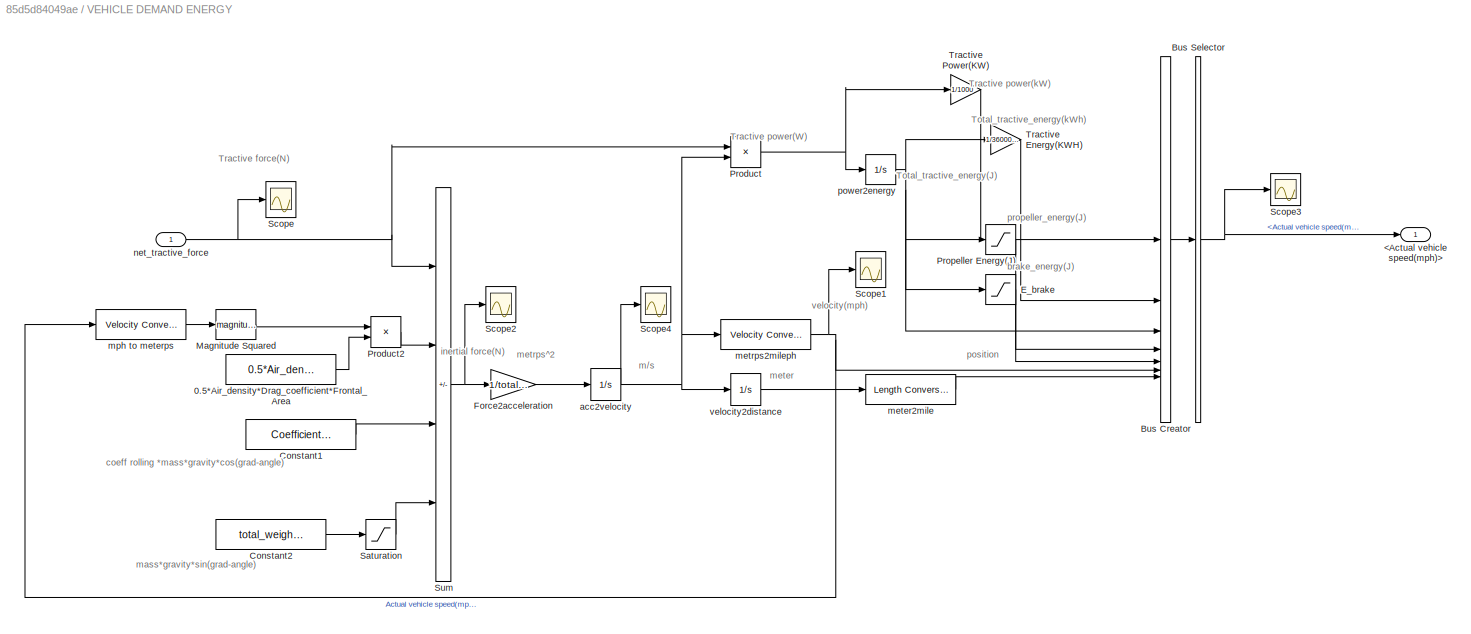
BLOCK [SubSystem] VEHICLE DEMAND ENERGY
BLOCK [Integrator] VEHICLE DEMAND ENERGY/   acc2velocity
BLOCK [Constant] VEHICLE DEMAND ENERGY/0.5*Air_density*Drag_coefficient*Frontal_Area
  OutDataTypeStr = double
  Value = 0.5*Air_density*Drag_coefficient*Frontal_Area
BLOCK [Outport] VEHICLE DEMAND ENERGY/<Actual vehicle speed(mph)>
BLOCK [BusCreator] VEHICLE DEMAND ENERGY/Bus Creator
  DisplayOption = bar
  InheritFromInputs = on
  Inputs = 7
BLOCK [BusSelector] VEHICLE DEMAND ENERGY/Bus Selector
  OutputSignals = Actual vehicle speed(mph)
BLOCK [Constant] VEHICLE DEMAND ENERGY/Constant1
  OutDataTypeStr = double
  Value = Coefficient_of_rolling_resistance*total_weight*Gravitational_force*cosd(grade_angle)
BLOCK [Constant] VEHICLE DEMAND ENERGY/Constant2
  OutDataTypeStr = double
  Value = total_weight*Gravitational_force*sind(grade_angle)
  VectorParams1D = off
BLOCK [Saturate] VEHICLE DEMAND ENERGY/E_brake
  LowerLimit = -100
  UpperLimit = 0
BLOCK [Gain] VEHICLE DEMAND ENERGY/Force2acceleration   
  Gain = 1/total_weight
  OutDataTypeStr = double
  ParamDataTypeStr = double
BLOCK [Math] VEHICLE DEMAND ENERGY/Magnitude Squared
  Operator = magnitude^2
  OutDataTypeStr = double
  OutputSignalType = real
BLOCK [Product] VEHICLE DEMAND ENERGY/Product
  OutDataTypeStr = double
BLOCK [Product] VEHICLE DEMAND ENERGY/Product2
BLOCK [Saturate] VEHICLE DEMAND ENERGY/Propeller Energy(J)
  LowerLimit = 0
  UpperLimit = 100
BLOCK [Saturate] VEHICLE DEMAND ENERGY/Saturation
  LowerLimit = 0
  UpperLimit = 244
BLOCK [Scope] VEHICLE DEMAND ENERGY/Scope
  ActiveDisplayYMaximum = 5646.11287
  ActiveDisplayYMinimum = -7446.99841
  DataLoggingVariableName = ScopeData1
  Floating = off
  GraphicalSettings = {"GraphicalSettings":{"LegacySettings":true,"Style":{"AxesScalingProperties":{"ScaleAxesLimitsAtStop":false},"Style":{"AxesColor":"[0 0 0]","ChannelNames":[""],"ColorOrder":"[1 0.909803921568627 0.392156862745098;0.149019607843137 0.549019607843137 0.866666666666667;0.96078431372549 0.466666666666667 0.16078431372549;0.286274509803922 0.858823529411765 0.250980392156863;0.752941176470588 0.3607843...<+552ch>  <repeated x4 — deduplicated; at blocks: Scope, Scope1, Scope2, Scope4>
  MultipleDisplayCache = [{"MaxYLimMag":7446.99841,"MaxYLimReal":5646.11287,"MinYLimMag":0,"MinYLimReal":-7446.99841,"PlotAsMagnitudePhase":false,"ShowGrid":true,"ShowLegend":false,"Title":"%<SignalLabel>","YLabel":""}]
  NumInputPorts = 1
  WasSavedAsWebScope = on
  WindowPosition = [1 41 1366 651]
BLOCK [Scope] VEHICLE DEMAND ENERGY/Scope1
  ActiveDisplayYMaximum = 48.04799
  ActiveDisplayYMinimum = -5.60777
  DataLoggingVariableName = ScopeData1
  Floating = off
  MultipleDisplayCache = [{"MaxYLimMag":48.04799,"MaxYLimReal":48.04799,"MinYLimMag":0,"MinYLimReal":-5.60777,"PlotAsMagnitudePhase":false,"ShowGrid":true,"ShowLegend":false,"Title":"%<SignalLabel>","YLabel":""}]
  NumInputPorts = 1
  WasSavedAsWebScope = on
  WindowPosition = [1 41 1366 651]
BLOCK [Scope] VEHICLE DEMAND ENERGY/Scope2
  ActiveDisplayYMaximum = 5646.11287
  ActiveDisplayYMinimum = -7446.99841
  DataLoggingVariableName = ScopeData2
  Floating = off
  MultipleDisplayCache = [{"MaxYLimMag":7446.99841,"MaxYLimReal":5646.11287,"MinYLimMag":0,"MinYLimReal":-7446.99841,"PlotAsMagnitudePhase":false,"ShowGrid":true,"ShowLegend":false,"Title":"%<SignalLabel>","YLabel":""}]
  NumInputPorts = 1
  WasSavedAsWebScope = on
  WindowPosition = [1 41 1366 651]
BLOCK [Scope] VEHICLE DEMAND ENERGY/Scope3
  ActiveDisplayYMaximum = 90.3643
  ActiveDisplayYMinimum = -10.04048
  DataLoggingVariableName = ScopeData1
  Floating = off
  MultipleDisplayCache = [{"MaxYLimMag":90.3643,"MaxYLimReal":90.3643,"MinYLimMag":0,"MinYLimReal":-10.04048,"PlotAsMagnitudePhase":false,"ShowGrid":true,"ShowLegend":false,"Title":"%<SignalLabel>","YLabel":""}]
  NumInputPorts = 1
  WasSavedAsWebScope = on
BLOCK [Scope] VEHICLE DEMAND ENERGY/Scope4
  ActiveDisplayYMaximum = 21.47937
  ActiveDisplayYMinimum = -2.5069
  DataLoggingVariableName = ScopeData3
  Floating = off
  MultipleDisplayCache = [{"MaxYLimMag":21.47937,"MaxYLimReal":21.47937,"MinYLimMag":0,"MinYLimReal":-2.5069,"PlotAsMagnitudePhase":false,"ShowGrid":true,"ShowLegend":false,"Title":"%<SignalLabel>","YLabel":""}]
  NumInputPorts = 1
  WasSavedAsWebScope = on
  WindowPosition = [1 41 1366 651]
BLOCK [Sum] VEHICLE DEMAND ENERGY/Sum
  AccumDataTypeStr = double
  IconShape = rectangular
  Inputs = +---
  OutDataTypeStr = double
BLOCK [Gain] VEHICLE DEMAND ENERGY/Tractive Energy(KWH)
  Gain = 1/3600000
BLOCK [Gain] VEHICLE DEMAND ENERGY/Tractive Power(KW)
  Gain = 1/1000
BLOCK [Reference] VEHICLE DEMAND ENERGY/meter2mile  REF=aerolibconvert2/Length Conversion
  SourceBlock = aerolibconvert2/Length Conversion
  SourceType = Length Conversion
BLOCK [Reference] VEHICLE DEMAND ENERGY/metrps2mileph  REF=aerolibconvert2/Velocity Conversion
  SourceBlock = aerolibconvert2/Velocity Conversion
  SourceType = Velocity Conversion
BLOCK [Reference] VEHICLE DEMAND ENERGY/mph to meterps  REF=aerolibconvert2/Velocity Conversion
  SourceBlock = aerolibconvert2/Velocity Conversion
  SourceType = Velocity Conversion
BLOCK [Inport] VEHICLE DEMAND ENERGY/net_tractive_force
BLOCK [Integrator] VEHICLE DEMAND ENERGY/power2energy
BLOCK [Integrator] VEHICLE DEMAND ENERGY/velocity2distance
BLOCK [Goto] open circuit voltage(V)
  GotoTag = open_circuit_voltage_V
ANNOTATION (root): (I^2*R) loss
ANNOTATION (root): Battery current(A)
ANNOTATION (root): F tr=( τ motor - τ loss) * - F Br
ANNOTATION (root): Battery energy losses(J)
ANNOTATION (root): Battery power losses(W)
ANNOTATION (root): Battery(slave)
ANNOTATION (root): Brake subsystem(slave)
ANNOTATION (root): Driveline subsystem
ANNOTATION (root): Driveline subsystem(slave)
ANNOTATION (root): I
ANNOTATION (root): I*Rint
ANNOTATION (root): Internal power (W)
ANNOTATION (root): Motor subsystem
ANNOTATION (root): Motor subsystem(slave)
ANNOTATION (root): PID controller(Master)
ANNOTATION (root): Vehicle Demand Energy(slave)
ANNOTATION (root): Vterm=Voc-(I*Rint)
ANNOTATION Brake system: Brake pedal position(%)
ANNOTATION Brake system: Desired brake force(N)
ANNOTATION Brake system: Regenerative brake force(N)
ANNOTATION Brake system: Velocity(mph)
ANNOTATION DRIVE LINE: Friction brake force(N)
ANNOTATION DRIVE LINE: motor net torqe
ANNOTATION DRIVE LINE: Brake force(N)
ANNOTATION DRIVE LINE: Drive line
ANNOTATION DRIVE LINE: Motor torque(Nm)
ANNOTATION DRIVE LINE: Net tractive force(N)
ANNOTATION DRIVE LINE: Torque split loss
ANNOTATION DRIVE LINE: mph 2 m/s
ANNOTATION DRIVE LINE: positive tractive force(N)
ANNOTATION PID CONTROLLER: Driver command
ANNOTATION PID CONTROLLER: Error(mph)
ANNOTATION Subsystem: 2*R
ANNOTATION Subsystem: 4*R*P
ANNOTATION Subsystem: Battery current(A)
ANNOTATION Subsystem: Battery power(W)
ANNOTATION Subsystem: I^2*Rint
ANNOTATION Subsystem: P actual power(W)
ANNOTATION Subsystem: P loss(W)
ANNOTATION Subsystem: R*P
ANNOTATION Subsystem: Voc
ANNOTATION Subsystem: Voc^2
ANNOTATION Subsystem: Voc^2-(4*R*P)
ANNOTATION Subsystem: i*Voc
ANNOTATION Subsystem: output power (W)
ANNOTATION Subsystem1: Maximum torque(Nm)
ANNOTATION Subsystem1: Motor net torque(Nm)
ANNOTATION Subsystem1: Motor power input(W)
ANNOTATION Subsystem1: Motor power output(W)
ANNOTATION Subsystem1: Motor speed (rad/sec)
ANNOTATION Subsystem1: Motor_power_loss(W)
ANNOTATION Subsystem1: Regeneration torque(Nm)
ANNOTATION TORQUE LIMITER: Maximum torque(Nm)
ANNOTATION VEHICLE DEMAND ENERGY: Total_tractive_energy(J)
ANNOTATION VEHICLE DEMAND ENERGY: Total_tractive_energy(kWh)
ANNOTATION VEHICLE DEMAND ENERGY: Tractive force(N)
ANNOTATION VEHICLE DEMAND ENERGY: Tractive power(W)
ANNOTATION VEHICLE DEMAND ENERGY: Tractive power(kW)
ANNOTATION VEHICLE DEMAND ENERGY: brake_energy(J)
ANNOTATION VEHICLE DEMAND ENERGY: coeff rolling *mass*gravity*cos(grad-angle)
ANNOTATION VEHICLE DEMAND ENERGY: inertial force(N)
ANNOTATION VEHICLE DEMAND ENERGY: m/s
ANNOTATION VEHICLE DEMAND ENERGY: mass*gravity*sin(grad-angle)
ANNOTATION VEHICLE DEMAND ENERGY: meter
ANNOTATION VEHICLE DEMAND ENERGY: metrps^2
ANNOTATION VEHICLE DEMAND ENERGY: position
ANNOTATION VEHICLE DEMAND ENERGY: propeller_energy(J)
ANNOTATION VEHICLE DEMAND ENERGY: velocity(mph)
NET %:1 -> Bus Creator2:1, Low soc limit:1
LINE 1//energy capacity:1 -> %:1
NET Brake system/Actual vehicle speed:1 -> Brake system/Compare To Constant:1, Brake system/Scope:4
LINE Brake system/Brake pedal position(%):1 -> Brake system/Gain:1
LINE Brake system/Bus Creator:1 -> Brake system/Bus Selector:1
LINE Brake system/Bus Selector:1 -> Brake system/<Frictional force(N)>:1
LINE Brake system/Bus Selector:2 -> Brake system/<Regenerative_brake_torque>:1
NET Brake system/Compare To Constant:1 -> Brake system/Scope:3, Brake system/Switch:2
LINE Brake system/Gain1:1 -> Brake system/Bus Creator:1
LINE Brake system/Gain2:1 -> Brake system/Gain3:1
NET Brake system/Gain3:1 -> Brake system/Scope:2, Brake system/Switch:1
NET Brake system/Gain:1 -> Brake system/Gain1:1, Brake system/Gain2:1
LINE Brake system/Ground:1 -> Brake system/Switch:3
NET Brake system/Switch:1 -> Brake system/Bus Creator:2, Brake system/Scope:1
LINE Brake system:1 -> Goto1:1
LINE Brake system:2 -> Goto2:1
LINE Bus Creator2:1 -> Bus Selector1:1
NET Bus Selector1:1 -> Scope1:1, To Workspace2:1
NET Bus Selector1:2 -> Scope2:1, To Workspace3:1
LINE Clock:1 -> To Workspace1:1
LINE Constant:1 -> Sum:1
LINE DRIVE LINE/Abs1:1 -> DRIVE LINE/Integrator:1
NET DRIVE LINE/Abs:1 -> DRIVE LINE/G//Wr:1, DRIVE LINE/IsNonZero:1
LINE DRIVE LINE/Brake force(N):1 -> DRIVE LINE/Saturation2:1
LINE DRIVE LINE/Bus Creator2:1 -> DRIVE LINE/Bus Selector2:1
NET DRIVE LINE/Bus Selector2:1 -> DRIVE LINE/<Net tractive force(N)>:1, DRIVE LINE/Scope:1
LINE DRIVE LINE/Bus Selector2:2 -> DRIVE LINE/<Motor speed (rad//sec)>:1
LINE DRIVE LINE/Driveline model spin loss:1 -> DRIVE LINE/Switch1:1
LINE DRIVE LINE/G//Wr1:1 -> DRIVE LINE/Sum2:1
LINE DRIVE LINE/G//Wr:1 -> DRIVE LINE/Saturation:1
LINE DRIVE LINE/Ground1:1 -> DRIVE LINE/Switch1:3
NET DRIVE LINE/Integrator:1 -> DRIVE LINE/Bus Creator2:3, DRIVE LINE/J 2 Kwh:1
LINE DRIVE LINE/IsNonZero:1 -> DRIVE LINE/Switch1:2
LINE DRIVE LINE/J 2 Kwh:1 -> DRIVE LINE/Bus Creator2:2
LINE DRIVE LINE/Motor torque(Nm):1 -> DRIVE LINE/Sum1:2
NET DRIVE LINE/Product:1 -> DRIVE LINE/Abs1:1, DRIVE LINE/Bus Creator2:1
NET DRIVE LINE/Saturation1:1 -> DRIVE LINE/Bus Creator2:5, DRIVE LINE/Scope1:1
LINE DRIVE LINE/Saturation2:1 -> DRIVE LINE/Sum2:2
NET DRIVE LINE/Saturation:1 -> DRIVE LINE/Bus Creator2:4, DRIVE LINE/Product:1, DRIVE LINE/Scope2:1
LINE DRIVE LINE/Sum1:1 -> DRIVE LINE/G//Wr1:1
LINE DRIVE LINE/Sum2:1 -> DRIVE LINE/Saturation1:1
NET DRIVE LINE/Switch1:1 -> DRIVE LINE/Product:2, DRIVE LINE/Scope4:1, DRIVE LINE/Sum1:1
LINE DRIVE LINE/Velocity Conversion:1 -> DRIVE LINE/Abs:1
LINE DRIVE LINE/actual vehicle speed:1 -> DRIVE LINE/Velocity Conversion:1
LINE DRIVE LINE:1 -> Goto5:1
LINE DRIVE LINE:2 -> Goto4:1
NET Drive cycle data:1 -> Drive cycle:1, PID CONTROLLER:1
LINE From10:1 -> DRIVE LINE:3
LINE From11:1 -> DRIVE LINE:2
LINE From12:1 -> TORQUE LIMITER:1
LINE From13:1 -> TORQUE LIMITER:2
LINE From14:1 -> REGENERATION TORQUE:1
LINE From15:1 -> REGENERATION TORQUE:2
LINE From16:1 -> Subsystem1:3
LINE From17:1 -> Subsystem1:1
LINE From18:1 -> Subsystem1:4
LINE From19:1 -> Subsystem1:2
LINE From1:1 -> Brake system:2
LINE From20:1 -> MOTOR LOSS:2
LINE From21:1 -> MOTOR LOSS:1
NET From22:1 -> PID CONTROLLER:2, Scope9:1, To Workspace:1
LINE From2:1 -> Product:1
LINE From3:1 -> Product:2
NET From4:1 -> Product1:1, Product2:1
LINE From5:1 -> Product1:2
LINE From6:1 -> Sum1:2
NET From7:1 -> Bus Creator2:7, Product3:2
LINE From8:1 -> Sum:2
LINE From9:1 -> DRIVE LINE:1
NET From:1 -> Scope4:1, VEHICLE DEMAND ENERGY:1
LINE Gain4:1 -> Integrator:1
LINE Integrator1:1 -> Bus Creator2:3
LINE Integrator2:1 -> Bus Creator2:6
LINE Integrator:1 -> 1//energy capacity:1
LINE Low soc limit:1 -> Stop Simulation:1
LINE MOTOR LOSS/Ground1:1 -> MOTOR LOSS/Switch1:3
LINE MOTOR LOSS/IsPositive:1 -> MOTOR LOSS/Switch1:2
NET MOTOR LOSS/Polynomial:1 -> MOTOR LOSS/Scope:1, MOTOR LOSS/Sum3:2
LINE MOTOR LOSS/Square:1 -> MOTOR LOSS/motor model Kc:1
LINE MOTOR LOSS/Sum3:1 -> MOTOR LOSS/Switch1:1
LINE MOTOR LOSS/Switch1:1 -> MOTOR LOSS/motor power loss:1
LINE MOTOR LOSS/motor model Kc:1 -> MOTOR LOSS/Sum3:1
LINE MOTOR LOSS/motor net torque:1 -> MOTOR LOSS/Square:1
NET MOTOR LOSS/motor speed rad per sec:1 -> MOTOR LOSS/IsPositive:1, MOTOR LOSS/Polynomial:1
NET MOTOR LOSS:1 -> Goto11:1, To Workspace5:1
NET PID CONTROLLER/<Actual vehicle speed(mph)>:1 -> PID CONTROLLER/Scope:2, PID CONTROLLER/Sum1:2
NET PID CONTROLLER/Acceleration pedal position(%):1 -> PID CONTROLLER/APP_%:1, PID CONTROLLER/Scope2:1
NET PID CONTROLLER/Brake pedal position(%):1 -> PID CONTROLLER/BPP_%:1, PID CONTROLLER/Scope3:1
NET PID CONTROLLER/Drive cycle velocity_mph:1 -> PID CONTROLLER/Scope:1, PID CONTROLLER/Sum1:1
NET PID CONTROLLER/PID Controller:1 -> PID CONTROLLER/Acceleration pedal position(%):1, PID CONTROLLER/Brake pedal position(%):1, PID CONTROLLER/Scope1:1
LINE PID CONTROLLER/Sum1:1 -> PID CONTROLLER/PID Controller:1
NET PID CONTROLLER:1 -> App:1, Goto:1, To Workspace7:1
NET PID CONTROLLER:2 -> Brake system:1, Scope3:1, To Workspace8:1
NET Product1:1 -> Product2:2, Sum1:1
NET Product2:1 -> Bus Creator2:2, Integrator1:1
NET Product3:1 -> Bus Creator2:5, Integrator2:1
LINE Product:1 -> Gain4:1
LINE REGENERATION TORQUE/Abs:1 -> REGENERATION TORQUE/Regeneration torque out:1
LINE REGENERATION TORQUE/Allowable_regeneration torque:1 -> REGENERATION TORQUE/Saturation Dynamic:3
LINE REGENERATION TORQUE/Constant2:1 -> REGENERATION TORQUE/Saturation Dynamic:1
LINE REGENERATION TORQUE/Regeneration_braking_torque(Nm):1 -> REGENERATION TORQUE/Saturation Dynamic:2
NET REGENERATION TORQUE/Saturation Dynamic:1 -> REGENERATION TORQUE/Abs:1, REGENERATION TORQUE/Scope:1
LINE REGENERATION TORQUE:1 -> Goto8:1
LINE Subsystem/Bus Creator:1 -> Subsystem/Bus Selector1:1
LINE Subsystem/Bus Selector1:1 -> Subsystem/Out2:1
LINE Subsystem/Bus Selector1:2 -> Subsystem/Out3:1
LINE Subsystem/Gain1:1 -> Subsystem/Product1:2
LINE Subsystem/Gain:1 -> Subsystem/Sum1:2
LINE Subsystem/In1:1 -> Subsystem/Product:1
LINE Subsystem/Math Function1:1 -> Subsystem/Product3:1
LINE Subsystem/Math Function:1 -> Subsystem/Sum1:1
NET Subsystem/Open circuit voltage(V):1 -> Subsystem/Math Function:1, Subsystem/Out1:1, Subsystem/Product2:1, Subsystem/Sum2:1
NET Subsystem/Product1:1 -> Subsystem/Math Function1:1, Subsystem/Out4:1, Subsystem/Product2:2
NET Subsystem/Product2:1 -> Subsystem/Bus Creator:1, Subsystem/Sum3:1
NET Subsystem/Product3:1 -> Subsystem/Bus Creator:4, Subsystem/Sum3:2, Subsystem/Sum4:2
LINE Subsystem/Product:1 -> Subsystem/Gain:1
LINE Subsystem/Sqrt:1 -> Subsystem/Sum2:2
LINE Subsystem/Sum1:1 -> Subsystem/Sqrt:1
LINE Subsystem/Sum2:1 -> Subsystem/Product1:1
NET Subsystem/Sum3:1 -> Subsystem/Bus Creator:2, Subsystem/Sum4:1
LINE Subsystem/Sum4:1 -> Subsystem/Bus Creator:3
NET Subsystem/internal resistance(ohm):1 -> Subsystem/Gain1:1, Subsystem/Out5:1, Subsystem/Product3:2, Subsystem/Product:2
LINE Subsystem1/Bus Creator3:1 -> Subsystem1/Bus Selector:1
LINE Subsystem1/Bus Selector:1 -> Subsystem1/<Motor net torque(Nm)>:1
LINE Subsystem1/Bus Selector:2 -> Subsystem1/<Motor power output(W)>:1
LINE Subsystem1/Integrator1:1 -> Subsystem1/Bus Creator3:4
LINE Subsystem1/Integrator2:1 -> Subsystem1/Bus Creator3:7
LINE Subsystem1/Integrator:1 -> Subsystem1/Bus Creator3:2
LINE Subsystem1/Maximum torque(Nm):1 -> Subsystem1/Sum1:1
NET Subsystem1/Motor power loss_W:1 -> Subsystem1/Bus Creator3:6, Subsystem1/Integrator2:1, Subsystem1/Scope:1, Subsystem1/Sum2:2
LINE Subsystem1/Motor speed (rad//sec):1 -> Subsystem1/Product1:2
NET Subsystem1/Product1:1 -> Subsystem1/Bus Creator3:1, Subsystem1/Integrator:1, Subsystem1/Scope2:1, Subsystem1/Sum2:1
LINE Subsystem1/Regeneration torque(Nm):1 -> Subsystem1/Sum1:2
NET Subsystem1/Sum1:1 -> Subsystem1/Bus Creator3:5, Subsystem1/Product1:1
NET Subsystem1/Sum2:1 -> Subsystem1/Bus Creator3:3, Subsystem1/Integrator1:1
NET Subsystem1:1 -> Goto9:1, To Workspace4:1
NET Subsystem1:2 -> Goto10:1, To Workspace6:1
NET Subsystem:1 -> Scope7:1, open circuit voltage(V):1
NET Subsystem:2 -> Battery current(A):1, Scope7:2
NET Subsystem:3 -> Internal resistance(ohm):1, Scope7:3
NET Sum1:1 -> Bus Creator2:4, Product3:1
LINE Sum:1 -> Subsystem:1
LINE TORQUE LIMITER/Divide:1 -> TORQUE LIMITER/MinMax:2
NET TORQUE LIMITER/Friction of maximum torque:1 -> TORQUE LIMITER/Allowable regeneration torque:1, TORQUE LIMITER/Scope1:1
LINE TORQUE LIMITER/Gain4:1 -> TORQUE LIMITER/Product:1
NET TORQUE LIMITER/MinMax:1 -> TORQUE LIMITER/Friction of maximum torque:1, TORQUE LIMITER/Product:2
LINE TORQUE LIMITER/Motor model max power out:1 -> TORQUE LIMITER/Divide:1
LINE TORQUE LIMITER/Motor model max torque out:1 -> TORQUE LIMITER/MinMax:1
NET TORQUE LIMITER/Product:1 -> TORQUE LIMITER/Maximum torque(Nm):1, TORQUE LIMITER/Scope:1
LINE TORQUE LIMITER/app:1 -> TORQUE LIMITER/Gain4:1
LINE TORQUE LIMITER/motor speed rad per sec:1 -> TORQUE LIMITER/Divide:2
NET TORQUE LIMITER:1 -> Goto7:1, Scope6:1
LINE TORQUE LIMITER:2 -> Goto6:1
NET VEHICLE DEMAND ENERGY/   acc2velocity:1 -> VEHICLE DEMAND ENERGY/Product:2, VEHICLE DEMAND ENERGY/Scope4:1, VEHICLE DEMAND ENERGY/metrps2mileph:1, VEHICLE DEMAND ENERGY/velocity2distance:1
LINE VEHICLE DEMAND ENERGY/0.5*Air_density*Drag_coefficient*Frontal_Area:1 -> VEHICLE DEMAND ENERGY/Product2:2
LINE VEHICLE DEMAND ENERGY/Bus Creator:1 -> VEHICLE DEMAND ENERGY/Bus Selector:1
NET VEHICLE DEMAND ENERGY/Bus Selector:1 -> VEHICLE DEMAND ENERGY/<Actual vehicle speed(mph)>:1, VEHICLE DEMAND ENERGY/Scope3:1
LINE VEHICLE DEMAND ENERGY/Constant1:1 -> VEHICLE DEMAND ENERGY/Sum:3
LINE VEHICLE DEMAND ENERGY/Constant2:1 -> VEHICLE DEMAND ENERGY/Saturation:1
LINE VEHICLE DEMAND ENERGY/E_brake:1 -> VEHICLE DEMAND ENERGY/Bus Creator:5
LINE VEHICLE DEMAND ENERGY/Force2acceleration   :1 -> VEHICLE DEMAND ENERGY/   acc2velocity:1
LINE VEHICLE DEMAND ENERGY/Magnitude Squared:1 -> VEHICLE DEMAND ENERGY/Product2:1
LINE VEHICLE DEMAND ENERGY/Product2:1 -> VEHICLE DEMAND ENERGY/Sum:2
NET VEHICLE DEMAND ENERGY/Product:1 -> VEHICLE DEMAND ENERGY/Tractive Power(KW):1, VEHICLE DEMAND ENERGY/power2energy:1
LINE VEHICLE DEMAND ENERGY/Propeller Energy(J):1 -> VEHICLE DEMAND ENERGY/Bus Creator:4
LINE VEHICLE DEMAND ENERGY/Saturation:1 -> VEHICLE DEMAND ENERGY/Sum:4
NET VEHICLE DEMAND ENERGY/Sum:1 -> VEHICLE DEMAND ENERGY/Force2acceleration   :1, VEHICLE DEMAND ENERGY/Scope2:1
LINE VEHICLE DEMAND ENERGY/Tractive Energy(KWH):1 -> VEHICLE DEMAND ENERGY/Bus Creator:2
LINE VEHICLE DEMAND ENERGY/Tractive Power(KW):1 -> VEHICLE DEMAND ENERGY/Bus Creator:1
LINE VEHICLE DEMAND ENERGY/meter2mile:1 -> VEHICLE DEMAND ENERGY/Bus Creator:7
NET VEHICLE DEMAND ENERGY/metrps2mileph:1 -> VEHICLE DEMAND ENERGY/Bus Creator:6, VEHICLE DEMAND ENERGY/Scope1:1, VEHICLE DEMAND ENERGY/mph to meterps:1
LINE VEHICLE DEMAND ENERGY/mph to meterps:1 -> VEHICLE DEMAND ENERGY/Magnitude Squared:1
NET VEHICLE DEMAND ENERGY/net_tractive_force:1 -> VEHICLE DEMAND ENERGY/Product:1, VEHICLE DEMAND ENERGY/Scope:1, VEHICLE DEMAND ENERGY/Sum:1
NET VEHICLE DEMAND ENERGY/power2energy:1 -> VEHICLE DEMAND ENERGY/Bus Creator:3, VEHICLE DEMAND ENERGY/E_brake:1, VEHICLE DEMAND ENERGY/Propeller Energy(J):1, VEHICLE DEMAND ENERGY/Tractive Energy(KWH):1
LINE VEHICLE DEMAND ENERGY/velocity2distance:1 -> VEHICLE DEMAND ENERGY/meter2mile:1
LINE VEHICLE DEMAND ENERGY:1 -> Goto3:1
note: NET lines group one-source signal fan-out (src -> all destinations, sorted); 1:1 wires keep LINE
